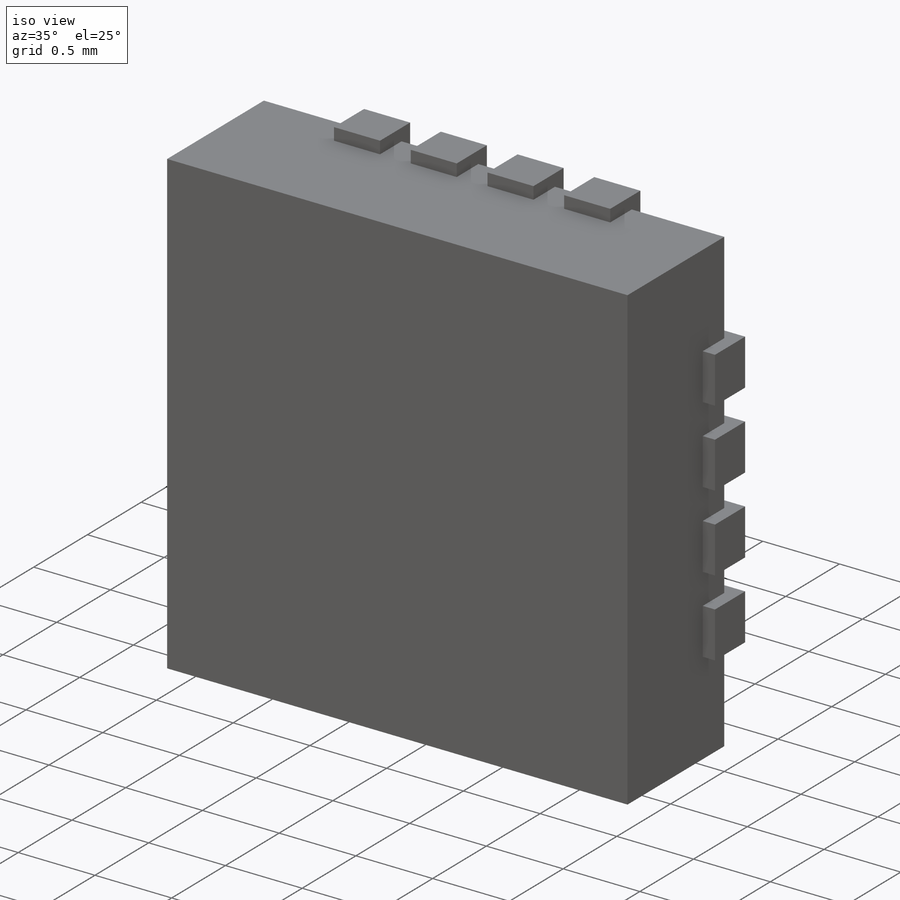
[diagram: iso view]
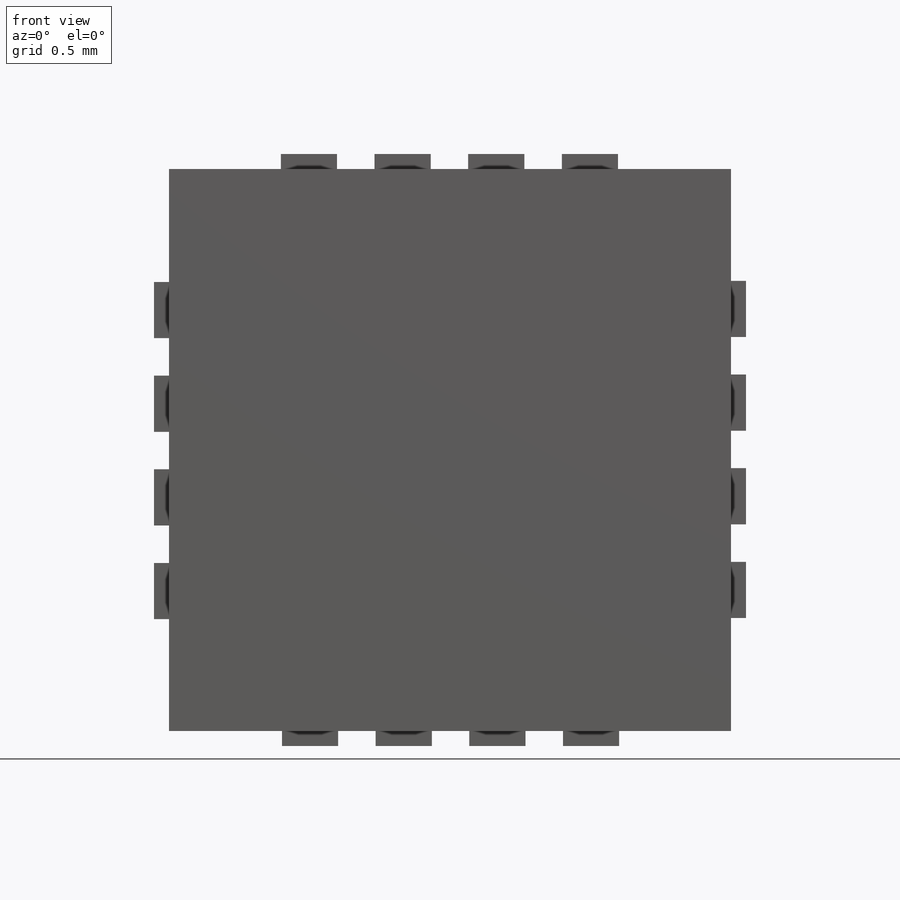
[diagram: front view]
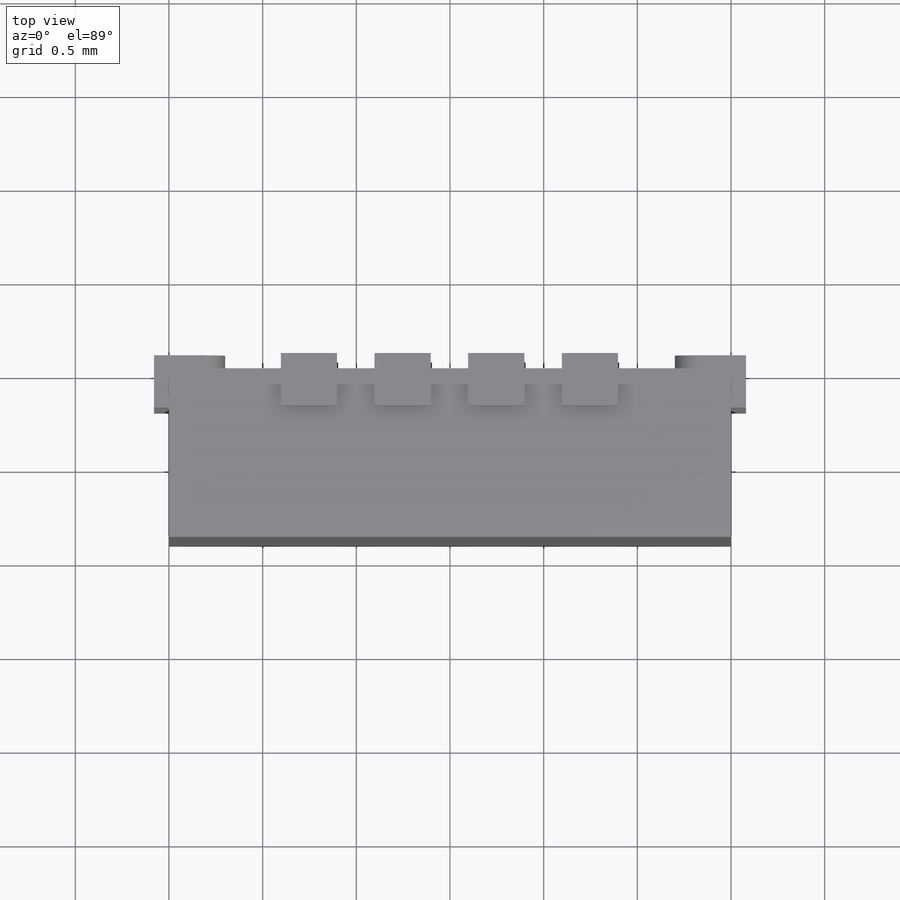
[diagram: top view]
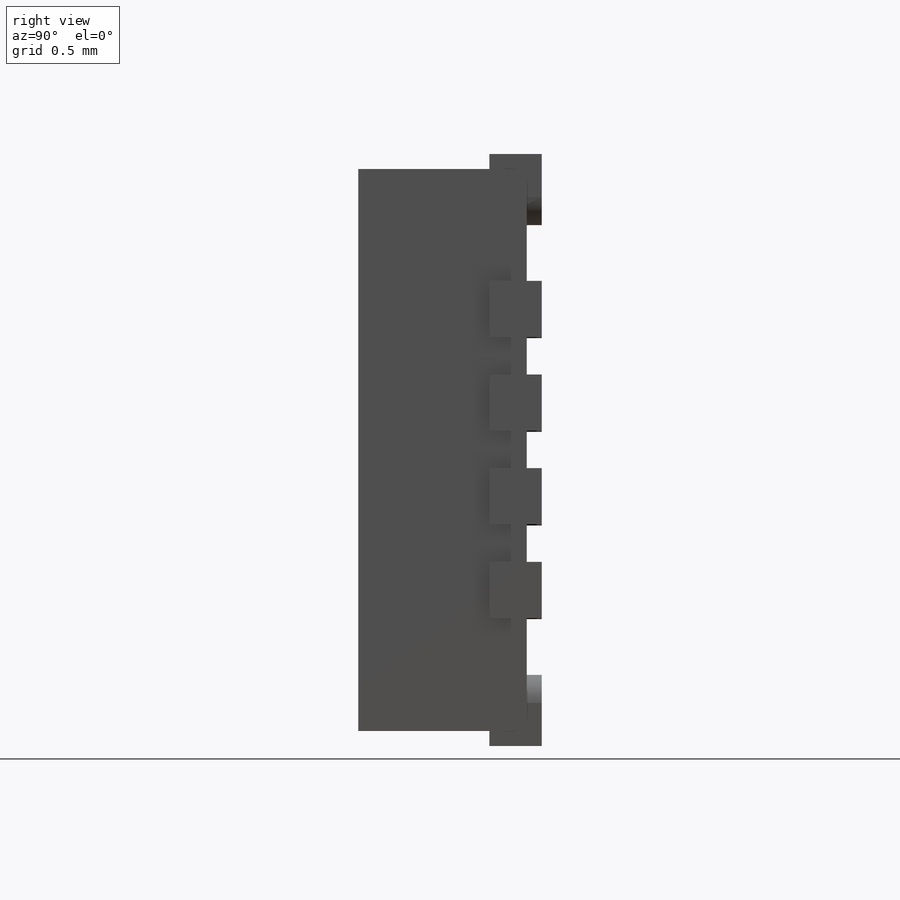
[diagram: right view]
SOLIDWORKS PART (.sldprt)
format: sldprt  version: not decoded by parser v0  size: 261,120 bytes
history: native  units: mm
features: sketch x3, extrude x3, plane x2, material x1, pattern_circular x1 (+13 scaffold rows collapsed)
feature tree (23):
  scaffold x13  (default folders/planes/origin — collapsed)
  material  "Material <not specified>"
  sketch  "Sketch1"  dims[D1=3.0mm D2=3.0mm]
  extrude  "Boss-Extrude1"  Depth=0.9mm
  sketch  "Sketch2"  dims[D4=0.15mm D1=0.08mm D2=0.253mm D3=0.3mm D5=0.15mm D6=2.0 D7=3.0]
  extrude  "Boss-Extrude2"  Depth=0.08mm
  sketch  "Sketch3"
  extrude  "Boss-Extrude3"  Depth=0.2mm
  plane  "Plane1"
  plane  "Plane2"
  pattern_circular  "CirPattern1"  Count=4 Angle=360deg
decode coverage: 6 of 7 modeling features carry decoded parameters
note: suppression state not decoded; provenance and decode notes live in map.json
